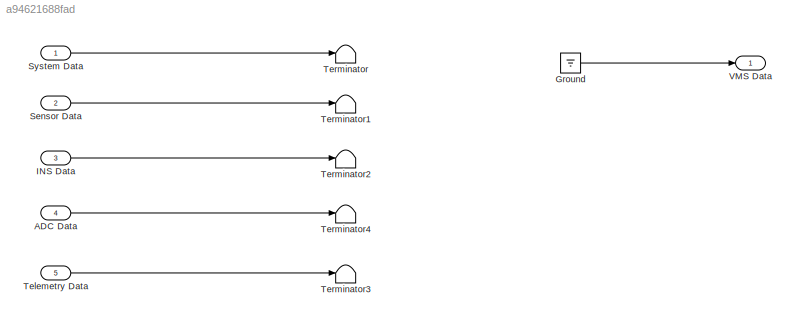
MODEL slx_a94621688fad
KIND model
CONFIG AbsTol = auto
CONFIG EnableMultiTasking = off
CONFIG FixedStep = 1/100
CONFIG MaxStep = auto
CONFIG MinStep = auto
CONFIG RelTol = 1e-3
CONFIG SampleTimeConstraint = Unconstrained
CONFIG SolverName = FixedStepAuto
CONFIG StartTime = 0.0
CONFIG StopTime = 10.0
BLOCK [Inport] ADC Data
  BusOutputAsStruct = on
  OutDataTypeStr = Bus: AdcData
  Port = 4
  SampleTime = framePeriod_s
BLOCK [Ground] Ground
BLOCK [Inport] INS Data
  BusOutputAsStruct = on
  OutDataTypeStr = Bus: InsData
  Port = 3
  SampleTime = framePeriod_s
BLOCK [Inport] Sensor Data
  BusOutputAsStruct = on
  OutDataTypeStr = Bus: SensorData
  Port = 2
  SampleTime = framePeriod_s
BLOCK [Inport] System Data
  BusOutputAsStruct = on
  OutDataTypeStr = Bus: SysData
  SampleTime = framePeriod_s
BLOCK [Inport] Telemetry Data
  BusOutputAsStruct = on
  OutDataTypeStr = Bus: TelemData
  Port = 5
  SampleTime = framePeriod_s
BLOCK [Terminator] Terminator
BLOCK [Terminator] Terminator1
BLOCK [Terminator] Terminator2
BLOCK [Terminator] Terminator3
BLOCK [Terminator] Terminator4
BLOCK [Outport] VMS Data
  BusOutputAsStruct = on
  OutDataTypeStr = Bus: VmsData
  SampleTime = framePeriod_s
LINE ADC Data:1 -> Terminator4:1
LINE Ground:1 -> VMS Data:1
LINE INS Data:1 -> Terminator2:1
LINE Sensor Data:1 -> Terminator1:1
LINE System Data:1 -> Terminator:1
LINE Telemetry Data:1 -> Terminator3:1
